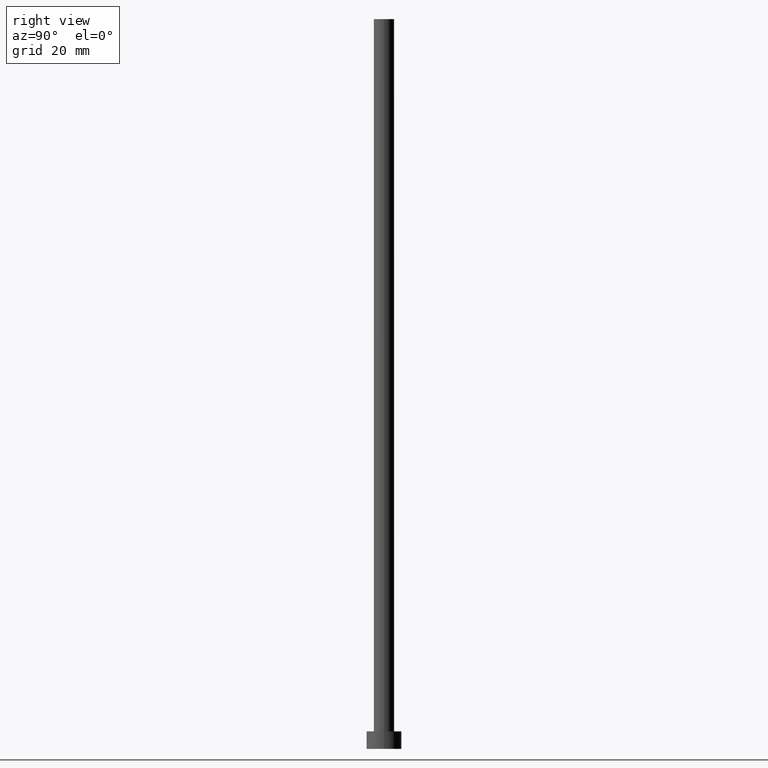
[diagram: clean part render]
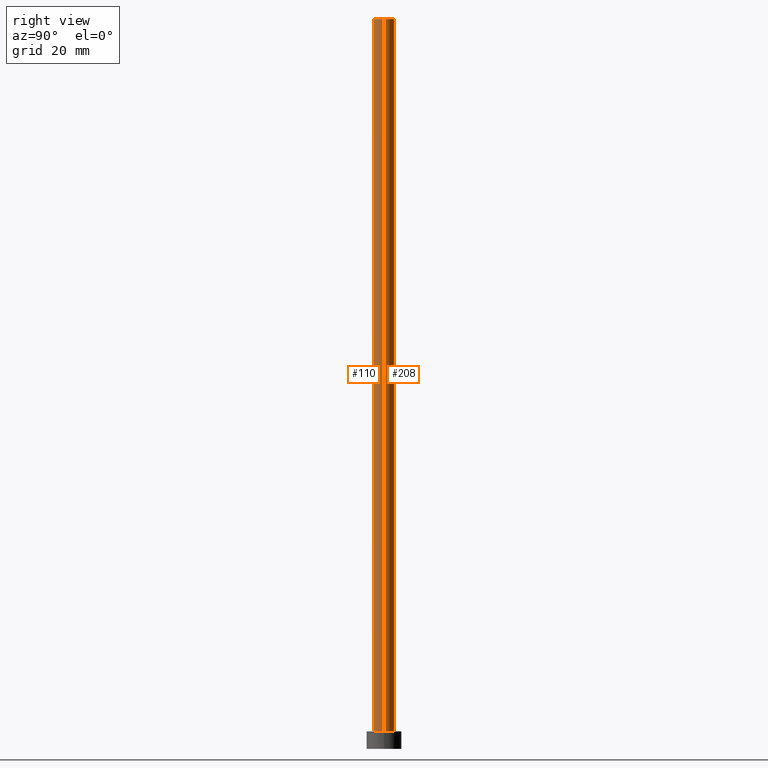
[diagram: same view with one multi-face feature highlighted, each face labeled with its STEP entity id]
A machine part, right view. The highlighted faces form ONE feature: a constant-radius fillet chain: 2 tangent blend faces with common blend radius 1.75 mm. The faces share edges in the B-rep.
Their STEP definitions:
[1] entity #208 (Cylinder):
#2 = DIRECTION ( 'NONE',  ( -0.000000000000000000, -0.000000000000000000, -1.000000000000000000 ) ) ;
#6 = CARTESIAN_POINT ( 'NONE',  ( -1.750000000000000000, 0.000000000000000000, 125.0000000000000000 ) ) ;
#14 = EDGE_CURVE ( 'NONE', #155, #70, #77, .T. ) ;
#26 = CIRCLE ( 'NONE', #78, 1.750000000000000000 ) ;
#29 = EDGE_CURVE ( 'NONE', #228, #155, #26, .T. ) ;
#38 = CARTESIAN_POINT ( 'NONE',  ( 0.000000000000000000, 0.000000000000000000, 125.0000000000000000 ) ) ;
#39 = CARTESIAN_POINT ( 'NONE',  ( 0.000000000000000000, 0.000000000000000000, 3.000000000000000000 ) ) ;
#42 = AXIS2_PLACEMENT_3D ( 'NONE', #39, #141, #121 ) ;
#43 = CARTESIAN_POINT ( 'NONE',  ( 1.750000000000000000, 2.143131898507867804E-16, 125.0000000000000000 ) ) ;
#56 = EDGE_CURVE ( 'NONE', #194, #70, #252, .T. ) ;
#64 = CARTESIAN_POINT ( 'NONE',  ( 1.750000000000000000, 2.143131898507867804E-16, 125.0000000000000000 ) ) ;
#69 = EDGE_LOOP ( 'NONE', ( #129, #133, #215, #250 ) ) ;
#70 = VERTEX_POINT ( 'NONE', #76 ) ;
#76 = CARTESIAN_POINT ( 'NONE',  ( -1.750000000000000000, 0.000000000000000000, 3.000000000000000000 ) ) ;
#77 = LINE ( 'NONE', #184, #162 ) ;
#78 = AXIS2_PLACEMENT_3D ( 'NONE', #38, #180, #166 ) ;
#90 = DIRECTION ( 'NONE',  ( -1.000000000000000000, 0.000000000000000000, 0.000000000000000000 ) ) ;
#107 = CYLINDRICAL_SURFACE ( 'NONE', #143, 1.750000000000000000 ) ;
#120 = DIRECTION ( 'NONE',  ( -0.000000000000000000, -0.000000000000000000, -1.000000000000000000 ) ) ;
#121 = DIRECTION ( 'NONE',  ( 1.000000000000000000, 0.000000000000000000, 0.000000000000000000 ) ) ;
#129 = ORIENTED_EDGE ( 'NONE', *, *, #29, .F. ) ;
#133 = ORIENTED_EDGE ( 'NONE', *, *, #135, .T. ) ;
#135 = EDGE_CURVE ( 'NONE', #228, #194, #219, .T. ) ;
#141 = DIRECTION ( 'NONE',  ( 0.000000000000000000, 0.000000000000000000, 1.000000000000000000 ) ) ;
#143 = AXIS2_PLACEMENT_3D ( 'NONE', #149, #2, #90 ) ;
#149 = CARTESIAN_POINT ( 'NONE',  ( 0.000000000000000000, 0.000000000000000000, 125.0000000000000000 ) ) ;
#155 = VERTEX_POINT ( 'NONE', #6 ) ;
#157 = VECTOR ( 'NONE', #120, 1000.000000000000000 ) ;
#162 = VECTOR ( 'NONE', #230, 1000.000000000000000 ) ;
#166 = DIRECTION ( 'NONE',  ( 1.000000000000000000, 0.000000000000000000, 0.000000000000000000 ) ) ;
#173 = FACE_OUTER_BOUND ( 'NONE', #69, .T. ) ;
#180 = DIRECTION ( 'NONE',  ( 0.000000000000000000, 0.000000000000000000, 1.000000000000000000 ) ) ;
#184 = CARTESIAN_POINT ( 'NONE',  ( -1.750000000000000000, 0.000000000000000000, 125.0000000000000000 ) ) ;
#189 = CARTESIAN_POINT ( 'NONE',  ( 1.750000000000000000, 2.143131898507867804E-16, 3.000000000000000000 ) ) ;
#194 = VERTEX_POINT ( 'NONE', #189 ) ;
#208 = ADVANCED_FACE ( 'NONE', ( #173 ), #107, .T. ) ;
#215 = ORIENTED_EDGE ( 'NONE', *, *, #56, .T. ) ;
#219 = LINE ( 'NONE', #43, #157 ) ;
#228 = VERTEX_POINT ( 'NONE', #64 ) ;
#230 = DIRECTION ( 'NONE',  ( -0.000000000000000000, -0.000000000000000000, -1.000000000000000000 ) ) ;
#250 = ORIENTED_EDGE ( 'NONE', *, *, #14, .F. ) ;
#252 = CIRCLE ( 'NONE', #42, 1.750000000000000000 ) ;
[2] entity #110 (Cylinder):
#6 = CARTESIAN_POINT ( 'NONE',  ( -1.750000000000000000, 0.000000000000000000, 125.0000000000000000 ) ) ;
#14 = EDGE_CURVE ( 'NONE', #155, #70, #77, .T. ) ;
#17 = FACE_OUTER_BOUND ( 'NONE', #138, .T. ) ;
#40 = ORIENTED_EDGE ( 'NONE', *, *, #135, .F. ) ;
#41 = CIRCLE ( 'NONE', #200, 1.750000000000000000 ) ;
#43 = CARTESIAN_POINT ( 'NONE',  ( 1.750000000000000000, 2.143131898507867804E-16, 125.0000000000000000 ) ) ;
#44 = ORIENTED_EDGE ( 'NONE', *, *, #98, .F. ) ;
#52 = EDGE_CURVE ( 'NONE', #70, #194, #41, .T. ) ;
#60 = ORIENTED_EDGE ( 'NONE', *, *, #52, .T. ) ;
#64 = CARTESIAN_POINT ( 'NONE',  ( 1.750000000000000000, 2.143131898507867804E-16, 125.0000000000000000 ) ) ;
#70 = VERTEX_POINT ( 'NONE', #76 ) ;
#76 = CARTESIAN_POINT ( 'NONE',  ( -1.750000000000000000, 0.000000000000000000, 3.000000000000000000 ) ) ;
#77 = LINE ( 'NONE', #184, #162 ) ;
#80 = DIRECTION ( 'NONE',  ( -0.000000000000000000, -0.000000000000000000, -1.000000000000000000 ) ) ;
#98 = EDGE_CURVE ( 'NONE', #155, #228, #236, .T. ) ;
#100 = CYLINDRICAL_SURFACE ( 'NONE', #231, 1.750000000000000000 ) ;
#110 = ADVANCED_FACE ( 'NONE', ( #17 ), #100, .T. ) ;
#115 = ORIENTED_EDGE ( 'NONE', *, *, #14, .T. ) ;
#120 = DIRECTION ( 'NONE',  ( -0.000000000000000000, -0.000000000000000000, -1.000000000000000000 ) ) ;
#126 = AXIS2_PLACEMENT_3D ( 'NONE', #237, #185, #202 ) ;
#135 = EDGE_CURVE ( 'NONE', #228, #194, #219, .T. ) ;
#138 = EDGE_LOOP ( 'NONE', ( #40, #44, #115, #60 ) ) ;
#155 = VERTEX_POINT ( 'NONE', #6 ) ;
#157 = VECTOR ( 'NONE', #120, 1000.000000000000000 ) ;
#162 = VECTOR ( 'NONE', #230, 1000.000000000000000 ) ;
#182 = DIRECTION ( 'NONE',  ( 0.000000000000000000, 0.000000000000000000, 1.000000000000000000 ) ) ;
#183 = DIRECTION ( 'NONE',  ( -1.000000000000000000, 0.000000000000000000, 0.000000000000000000 ) ) ;
#184 = CARTESIAN_POINT ( 'NONE',  ( -1.750000000000000000, 0.000000000000000000, 125.0000000000000000 ) ) ;
#185 = DIRECTION ( 'NONE',  ( 0.000000000000000000, 0.000000000000000000, 1.000000000000000000 ) ) ;
#189 = CARTESIAN_POINT ( 'NONE',  ( 1.750000000000000000, 2.143131898507867804E-16, 3.000000000000000000 ) ) ;
#194 = VERTEX_POINT ( 'NONE', #189 ) ;
#200 = AXIS2_PLACEMENT_3D ( 'NONE', #233, #182, #232 ) ;
#201 = CARTESIAN_POINT ( 'NONE',  ( 0.000000000000000000, 0.000000000000000000, 125.0000000000000000 ) ) ;
#202 = DIRECTION ( 'NONE',  ( 1.000000000000000000, 0.000000000000000000, 0.000000000000000000 ) ) ;
#219 = LINE ( 'NONE', #43, #157 ) ;
#228 = VERTEX_POINT ( 'NONE', #64 ) ;
#230 = DIRECTION ( 'NONE',  ( -0.000000000000000000, -0.000000000000000000, -1.000000000000000000 ) ) ;
#231 = AXIS2_PLACEMENT_3D ( 'NONE', #201, #80, #183 ) ;
#232 = DIRECTION ( 'NONE',  ( 1.000000000000000000, 0.000000000000000000, 0.000000000000000000 ) ) ;
#233 = CARTESIAN_POINT ( 'NONE',  ( 0.000000000000000000, 0.000000000000000000, 3.000000000000000000 ) ) ;
#236 = CIRCLE ( 'NONE', #126, 1.750000000000000000 ) ;
#237 = CARTESIAN_POINT ( 'NONE',  ( 0.000000000000000000, 0.000000000000000000, 125.0000000000000000 ) ) ;